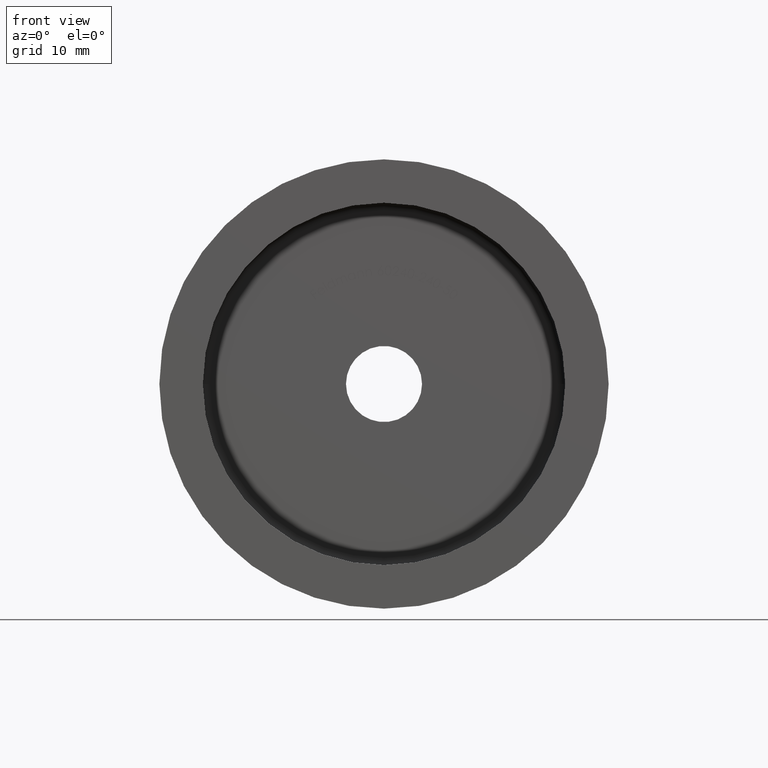
[diagram: clean part render]
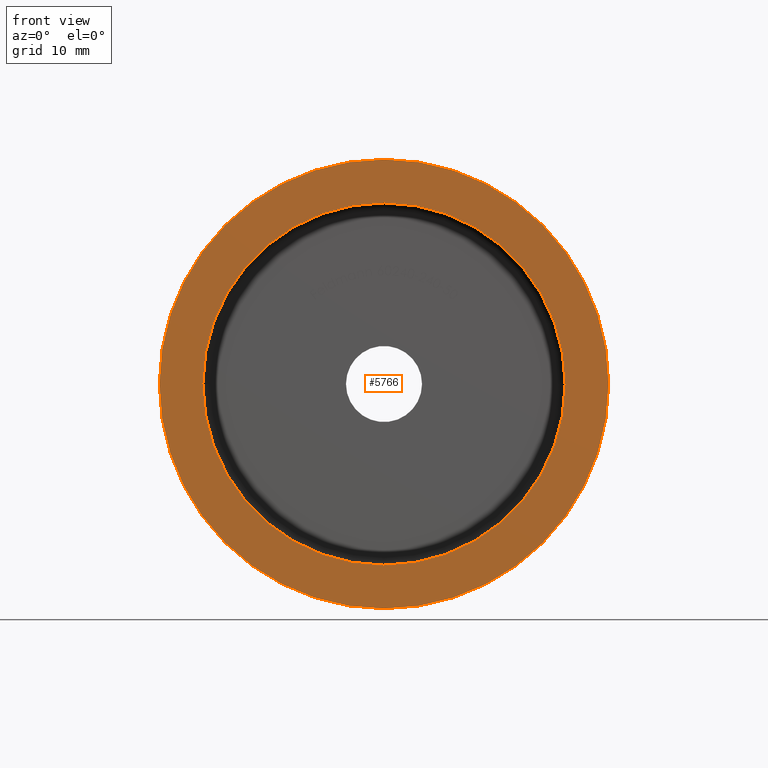
[diagram: same view with one face highlighted and labeled with its STEP entity id]
A machine part, front view. The second image highlights one B-rep face of the part: STEP entity #5766.
In plain terms, the highlighted planar face has unit normal (0, -1, 0).
Its self-contained STEP definition (entity closure, byte-faithful):
#537 = CARTESIAN_POINT ( 'NONE',  ( -7.703719777548943412E-31, 6.938893903907228378E-15, 0.000000000000000000 ) ) ;
#539 = ORIENTED_EDGE ( 'NONE', *, *, #14653, .F. ) ;
#582 = DIRECTION ( 'NONE',  ( 1.387778780781445676E-16, -1.000000000000000000, 0.000000000000000000 ) ) ;
#1364 = EDGE_CURVE ( 'NONE', #13627, #5397, #3179, .T. ) ;
#1483 = CARTESIAN_POINT ( 'NONE',  ( 31.00000000000000000, 1.124100812432970997E-14, 3.796405077356795904E-15 ) ) ;
#1657 = DIRECTION ( 'NONE',  ( 1.000000000000000000, 1.387778780781445676E-16, 0.000000000000000000 ) ) ;
#2040 = DIRECTION ( 'NONE',  ( 0.000000000000000000, -1.000000000000000000, 0.000000000000000000 ) ) ;
#2743 = DIRECTION ( 'NONE',  ( 0.000000000000000000, 0.000000000000000000, -1.000000000000000000 ) ) ;
#2781 = CARTESIAN_POINT ( 'NONE',  ( -8.499999999999998224, -3.199416899163299805E-16, 0.000000000000000000 ) ) ;
#3179 = CIRCLE ( 'NONE', #4356, 31.00000000000000000 ) ;
#3438 = ORIENTED_EDGE ( 'NONE', *, *, #4598, .F. ) ;
#3486 = DIRECTION ( 'NONE',  ( -1.387778780781445676E-16, 1.000000000000000000, -0.000000000000000000 ) ) ;
#4356 = AXIS2_PLACEMENT_3D ( 'NONE', #10278, #3486, #4635 ) ;
#4598 = EDGE_CURVE ( 'NONE', #14087, #5382, #14800, .T. ) ;
#4635 = DIRECTION ( 'NONE',  ( -1.000000000000000000, -1.387778780781445676E-16, 0.000000000000000000 ) ) ;
#4727 = CARTESIAN_POINT ( 'NONE',  ( -31.00000000000000000, 2.636779683484746784E-15, 0.000000000000000000 ) ) ;
#4853 = AXIS2_PLACEMENT_3D ( 'NONE', #6783, #2040, #7862 ) ;
#4979 = EDGE_CURVE ( 'NONE', #5397, #13627, #11128, .T. ) ;
#5359 = ORIENTED_EDGE ( 'NONE', *, *, #4979, .F. ) ;
#5382 = VERTEX_POINT ( 'NONE', #8196 ) ;
#5397 = VERTEX_POINT ( 'NONE', #1483 ) ;
#5766 = ADVANCED_FACE ( 'NONE', ( #11299, #13121 ), #5961, .T. ) ;
#5961 = PLANE ( 'NONE',  #13550 ) ;
#6783 = CARTESIAN_POINT ( 'NONE',  ( 0.000000000000000000, 0.000000000000000000, 0.000000000000000000 ) ) ;
#7453 = DIRECTION ( 'NONE',  ( -1.000000000000000000, -1.387778780781445676E-16, 0.000000000000000000 ) ) ;
#7862 = DIRECTION ( 'NONE',  ( 0.000000000000000000, 0.000000000000000000, -1.000000000000000000 ) ) ;
#8196 = CARTESIAN_POINT ( 'NONE',  ( 0.000000000000000000, 0.000000000000000000, -25.00000000000000000 ) ) ;
#8686 = EDGE_LOOP ( 'NONE', ( #12866, #5359 ) ) ;
#9009 = AXIS2_PLACEMENT_3D ( 'NONE', #14324, #9778, #2743 ) ;
#9533 = CIRCLE ( 'NONE', #9009, 25.00000000000000000 ) ;
#9682 = DIRECTION ( 'NONE',  ( -1.387778780781445676E-16, 1.000000000000000000, -0.000000000000000000 ) ) ;
#9778 = DIRECTION ( 'NONE',  ( 0.000000000000000000, -1.000000000000000000, 0.000000000000000000 ) ) ;
#10278 = CARTESIAN_POINT ( 'NONE',  ( -7.703719777548943412E-31, 6.938893903907228378E-15, 0.000000000000000000 ) ) ;
#11128 = CIRCLE ( 'NONE', #13141, 31.00000000000000000 ) ;
#11299 = FACE_BOUND ( 'NONE', #13486, .T. ) ;
#12705 = CARTESIAN_POINT ( 'NONE',  ( 3.061616997868383043E-15, 0.000000000000000000, 25.00000000000000000 ) ) ;
#12866 = ORIENTED_EDGE ( 'NONE', *, *, #1364, .F. ) ;
#13121 = FACE_OUTER_BOUND ( 'NONE', #8686, .T. ) ;
#13141 = AXIS2_PLACEMENT_3D ( 'NONE', #537, #9682, #7453 ) ;
#13486 = EDGE_LOOP ( 'NONE', ( #539, #3438 ) ) ;
#13550 = AXIS2_PLACEMENT_3D ( 'NONE', #2781, #582, #1657 ) ;
#13627 = VERTEX_POINT ( 'NONE', #4727 ) ;
#14087 = VERTEX_POINT ( 'NONE', #12705 ) ;
#14324 = CARTESIAN_POINT ( 'NONE',  ( 0.000000000000000000, 0.000000000000000000, 0.000000000000000000 ) ) ;
#14653 = EDGE_CURVE ( 'NONE', #5382, #14087, #9533, .T. ) ;
#14800 = CIRCLE ( 'NONE', #4853, 25.00000000000000000 ) ;